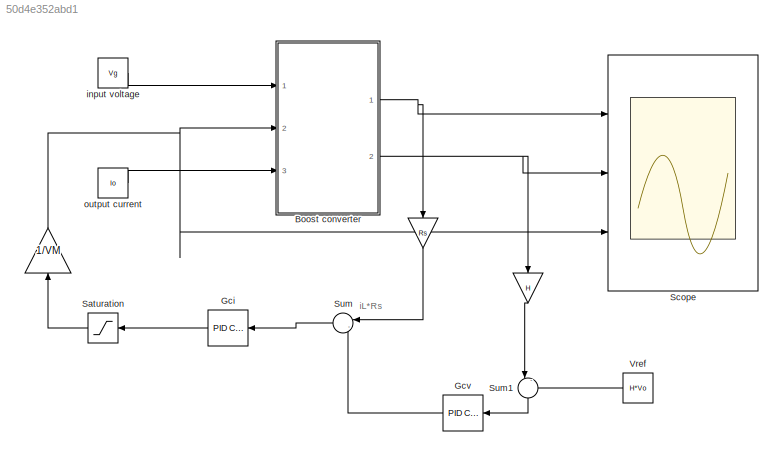
MODEL slx_50d4e352abd1
KIND model
CONFIG AbsTol = auto
CONFIG FixedStep = auto
CONFIG MaxStep = 0.1e-6
CONFIG MinStep = auto
CONFIG RelTol = 1e-3
CONFIG SampleTimeConstraint = Unconstrained
CONFIG Solver = ode45
CONFIG SolverMode = Auto
CONFIG SolverName = ode45
CONFIG StartTime = 0.0
CONFIG StopTime = 50e-3
BLOCK [Gain]   
  Gain = Rs
  OutDataTypeStr = Inherit: Inherit via internal rule
  ParamDataTypeStr = Inherit: Inherit via internal rule
  SaturateOnIntegerOverflow = off
BLOCK [Gain]      
  Gain = 1/VM
  OutDataTypeStr = Inherit: Inherit via internal rule
  ParamDataTypeStr = Inherit: Inherit via internal rule
  SaturateOnIntegerOverflow = off
BLOCK [Gain]            
  Gain = H
  OutDataTypeStr = Inherit: Inherit via internal rule
  ParamDataTypeStr = Inherit: Inherit via internal rule
  SaturateOnIntegerOverflow = off
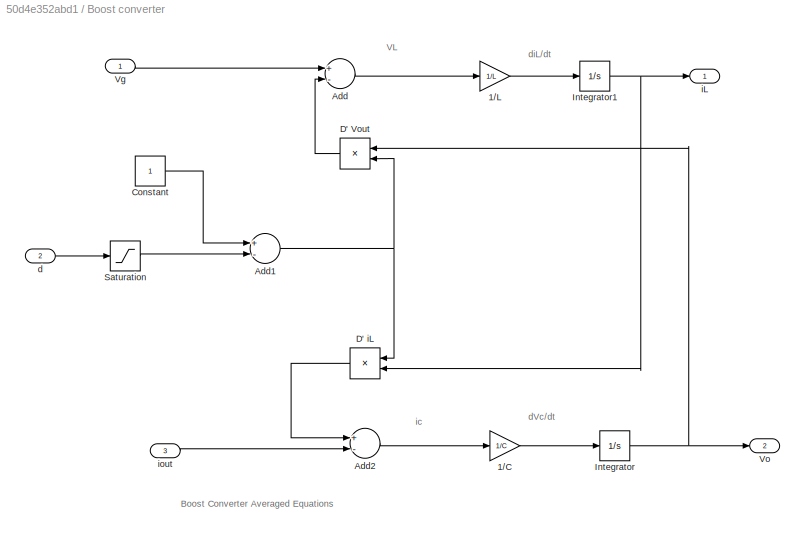
BLOCK [SubSystem] Boost converter
  Ports = [3, 2]
  RequestExecContextInheritance = off
  Variant = off
BLOCK [Gain] Boost converter/1//C
  Gain = 1/C
  OutDataTypeStr = Inherit: Inherit via internal rule
  ParamDataTypeStr = Inherit: Inherit via internal rule
  SaturateOnIntegerOverflow = off
BLOCK [Gain] Boost converter/1//L
  Gain = 1/L
  OutDataTypeStr = Inherit: Inherit via internal rule
  ParamDataTypeStr = Inherit: Inherit via internal rule
  SaturateOnIntegerOverflow = off
BLOCK [Sum] Boost converter/Add
  InputSameDT = off
  Inputs = +-
  OutDataTypeStr = Inherit: Inherit via internal rule
  Ports = [2, 1]
  SaturateOnIntegerOverflow = off
BLOCK [Sum] Boost converter/Add1
  InputSameDT = off
  Inputs = +-
  OutDataTypeStr = Inherit: Inherit via internal rule
  Ports = [2, 1]
  SaturateOnIntegerOverflow = off
BLOCK [Sum] Boost converter/Add2
  InputSameDT = off
  Inputs = +-
  OutDataTypeStr = Inherit: Inherit via internal rule
  Ports = [2, 1]
  SaturateOnIntegerOverflow = off
BLOCK [Constant] Boost converter/Constant
BLOCK [Product] Boost converter/D' Vout
  InputSameDT = off
  OutDataTypeStr = Inherit: Inherit via internal rule
  Ports = [2, 1]
  RndMeth = Floor
  SaturateOnIntegerOverflow = off
BLOCK [Product] Boost converter/D' iL
  InputSameDT = off
  OutDataTypeStr = Inherit: Inherit via internal rule
  Ports = [2, 1]
  RndMeth = Floor
  SaturateOnIntegerOverflow = off
BLOCK [Integrator] Boost converter/Integrator
  Ports = [1, 1]
BLOCK [Integrator] Boost converter/Integrator1
  Ports = [1, 1]
BLOCK [Saturate] Boost converter/Saturation
  InputPortMap = u0
  LowerLimit = 0
  Ports = [1, 1]
  UpperLimit = 1
BLOCK [Inport] Boost converter/Vg
  IconDisplay = Port number
BLOCK [Outport] Boost converter/Vo
  IconDisplay = Port number
  Port = 2
BLOCK [Inport] Boost converter/d
  IconDisplay = Port number
  Port = 2
BLOCK [Outport] Boost converter/iL
  IconDisplay = Port number
BLOCK [Inport] Boost converter/iout
  IconDisplay = Port number
  Port = 3
BLOCK [Reference] Gci  REF=simulink/Continuous/PID Controller
  Ports = [1, 1]
  SourceBlock = simulink/Continuous/PID Controller
  SourceType = PID 1dof
BLOCK [Reference] Gcv  REF=simulink/Continuous/PID Controller
  Ports = [1, 1]
  SourceBlock = simulink/Continuous/PID Controller
  SourceType = PID 1dof
BLOCK [Saturate] Saturation
  InputPortMap = u0
  LowerLimit = 0
  Ports = [1, 1]
  UpperLimit = 1
BLOCK [Scope] Scope
  NumInputPorts = 3
  Ports = [3]
  ScopeSpecificationString = Simulink.scopes.TimeScopeBlockCfg('CurrentConfiguration', extmgr.ConfigurationSet(extmgr.Configuration('Core','General UI',true),extmgr.Configuration('Core','Source UI',true),extmgr.Configuration('Sources','WiredSimulink',true,'DataLoggingVariableName','ScopeData1'),extmgr.Configuration('Visuals','Time Domain',true,'SerializedDisplays',{struct('MinYLimReal','-344.69429','MaxYLimReal','479.64599','...<+2685ch>
BLOCK [Sum] Sum
  IconShape = round
  InputSameDT = off
  Inputs = |-+
  OutDataTypeStr = Inherit: Inherit via internal rule
  Ports = [2, 1]
  SaturateOnIntegerOverflow = off
BLOCK [Sum] Sum1
  IconShape = round
  InputSameDT = off
  Inputs = |-+
  OutDataTypeStr = Inherit: Inherit via internal rule
  Ports = [2, 1]
  SaturateOnIntegerOverflow = off
BLOCK [Constant] Vref
  Value = H*Vo
BLOCK [Constant] input voltage
  Value = Vg
BLOCK [Constant] output current
  Value = Io
ANNOTATION (root): iL*Rs
ANNOTATION Boost converter: Boost Converter Averaged Equations
ANNOTATION Boost converter: VL
ANNOTATION Boost converter: dVc/dt
ANNOTATION Boost converter: diL/dt
ANNOTATION Boost converter: ic
LINE            :1 -> Sum1:1
NET      :1 -> Boost converter:2, Scope:3
LINE   :1 -> Sum:1
LINE Boost converter/1//C:1 -> Boost converter/Integrator:1
LINE Boost converter/1//L:1 -> Boost converter/Integrator1:1
NET Boost converter/Add1:1 -> Boost converter/D' Vout:2, Boost converter/D' iL:1
LINE Boost converter/Add2:1 -> Boost converter/1//C:1
LINE Boost converter/Add:1 -> Boost converter/1//L:1
LINE Boost converter/Constant:1 -> Boost converter/Add1:1
LINE Boost converter/D' Vout:1 -> Boost converter/Add:2
LINE Boost converter/D' iL:1 -> Boost converter/Add2:1
NET Boost converter/Integrator1:1 -> Boost converter/D' iL:2, Boost converter/iL:1
NET Boost converter/Integrator:1 -> Boost converter/D' Vout:1, Boost converter/Vo:1
LINE Boost converter/Saturation:1 -> Boost converter/Add1:2
LINE Boost converter/Vg:1 -> Boost converter/Add:1
LINE Boost converter/d:1 -> Boost converter/Saturation:1
LINE Boost converter/iout:1 -> Boost converter/Add2:2
NET Boost converter:1 ->   :1, Scope:1
NET Boost converter:2 ->            :1, Scope:2
LINE Gci:1 -> Saturation:1
LINE Gcv:1 -> Sum:2
LINE Saturation:1 ->      :1
LINE Sum1:1 -> Gcv:1
LINE Sum:1 -> Gci:1
LINE Vref:1 -> Sum1:2
LINE input voltage:1 -> Boost converter:1
LINE output current:1 -> Boost converter:3
note: NET lines group one-source signal fan-out (src -> all destinations, sorted); 1:1 wires keep LINE
